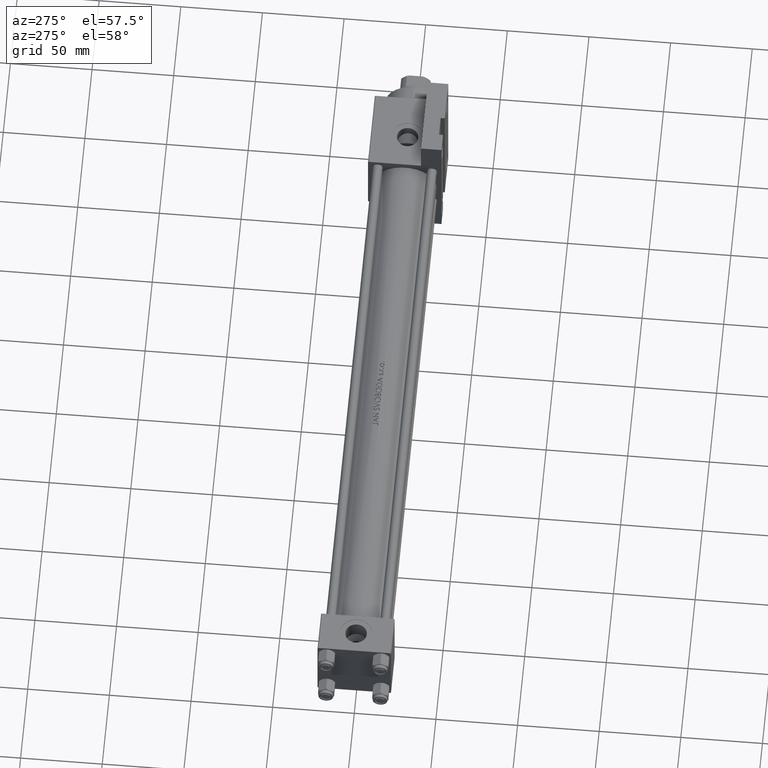
[diagram: clean part render]
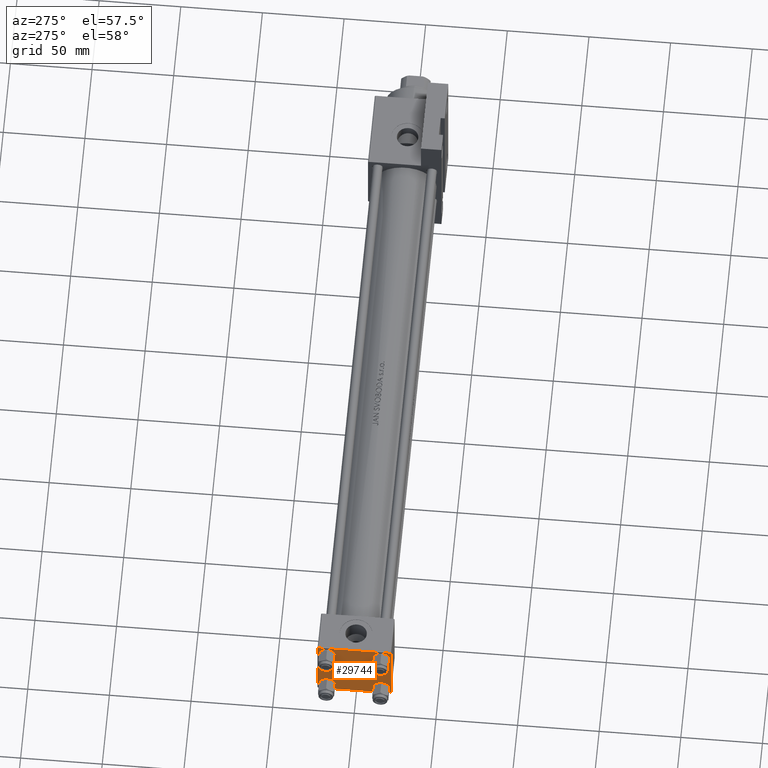
[diagram: same view with one face highlighted and labeled with its STEP entity id]
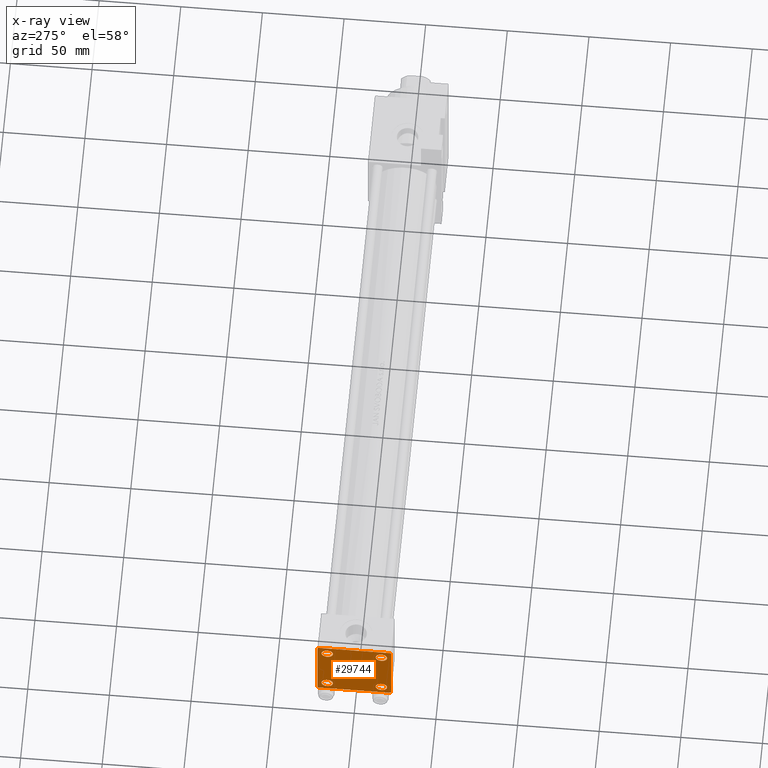
[diagram: x-ray of the same camera — body ghosted, the highlighted face saturated]
A machine part, auxiliary view. The second image highlights one B-rep face of the part: STEP entity #29744.
The next image is the same camera in x-ray: the body ghosted, the highlighted face saturated — about 0% of this face is hidden behind the body in this view.
In plain terms, the highlighted planar face has unit normal (-1, 0, -0).
Its self-contained STEP definition (entity closure, byte-faithful):
#402 = CARTESIAN_POINT ( 'NONE',  ( 0.000000000000000000, -16.59999999999999076, 13.10000000000001030 ) ) ;
#497 = VERTEX_POINT ( 'NONE', #21636 ) ;
#692 = EDGE_CURVE ( 'NONE', #11944, #497, #26934, .T. ) ;
#814 = EDGE_LOOP ( 'NONE', ( #40287, #13707 ) ) ;
#1103 = DIRECTION ( 'NONE',  ( 0.000000000000000000, -0.7071067811865426878, 0.7071067811865524577 ) ) ;
#1499 = DIRECTION ( 'NONE',  ( 1.000000000000000000, -0.000000000000000000, 0.000000000000000000 ) ) ;
#1882 = EDGE_CURVE ( 'NONE', #38798, #25050, #41513, .T. ) ;
#2148 = AXIS2_PLACEMENT_3D ( 'NONE', #22300, #4204, #33660 ) ;
#2780 = CARTESIAN_POINT ( 'NONE',  ( 0.000000000000000000, 16.59999999999999787, -13.10000000000000675 ) ) ;
#3058 = ORIENTED_EDGE ( 'NONE', *, *, #39753, .T. ) ;
#3153 = DIRECTION ( 'NONE',  ( 0.000000000000000000, 0.000000000000000000, 1.000000000000000000 ) ) ;
#3164 = VERTEX_POINT ( 'NONE', #2780 ) ;
#3527 = EDGE_CURVE ( 'NONE', #497, #37989, #11387, .T. ) ;
#3839 = CARTESIAN_POINT ( 'NONE',  ( 0.000000000000000000, -22.50000000000000000, -21.99999999999997158 ) ) ;
#4162 = VERTEX_POINT ( 'NONE', #4269 ) ;
#4204 = DIRECTION ( 'NONE',  ( 1.000000000000000000, -0.000000000000000000, 0.000000000000000000 ) ) ;
#4269 = CARTESIAN_POINT ( 'NONE',  ( 0.000000000000000000, -16.59999999999999076, 20.10000000000000853 ) ) ;
#4822 = DIRECTION ( 'NONE',  ( -0.000000000000000000, 0.7071067811865525687, 0.7071067811865425767 ) ) ;
#5229 = LINE ( 'NONE', #35892, #35617 ) ;
#5661 = VERTEX_POINT ( 'NONE', #8958 ) ;
#5669 = DIRECTION ( 'NONE',  ( 0.000000000000000000, 0.7071067811865474617, -0.7071067811865474617 ) ) ;
#5737 = ORIENTED_EDGE ( 'NONE', *, *, #29570, .F. ) ;
#5933 = CARTESIAN_POINT ( 'NONE',  ( 0.000000000000000000, 16.59999999999999787, 20.10000000000000142 ) ) ;
#6078 = CARTESIAN_POINT ( 'NONE',  ( 0.000000000000000000, 16.59999999999999787, 16.60000000000000497 ) ) ;
#6404 = CARTESIAN_POINT ( 'NONE',  ( 0.000000000000000000, -21.99999999999997868, 22.50000000000000000 ) ) ;
#7028 = CIRCLE ( 'NONE', #39402, 3.499999999999996003 ) ;
#7211 = DIRECTION ( 'NONE',  ( 1.000000000000000000, -0.000000000000000000, 0.000000000000000000 ) ) ;
#7654 = ORIENTED_EDGE ( 'NONE', *, *, #23024, .T. ) ;
#8958 = CARTESIAN_POINT ( 'NONE',  ( 0.000000000000000000, -16.59999999999999076, -20.10000000000000497 ) ) ;
#11179 = CARTESIAN_POINT ( 'NONE',  ( 0.000000000000000000, 21.99999999999999289, 22.50000000000000355 ) ) ;
#11237 = FACE_BOUND ( 'NONE', #814, .T. ) ;
#11372 = CARTESIAN_POINT ( 'NONE',  ( 0.000000000000000000, -16.59999999999999076, -13.10000000000001030 ) ) ;
#11387 = LINE ( 'NONE', #21998, #40691 ) ;
#11561 = VECTOR ( 'NONE', #1103, 1000.000000000000000 ) ;
#11582 = EDGE_CURVE ( 'NONE', #11991, #20748, #5229, .T. ) ;
#11922 = EDGE_CURVE ( 'NONE', #11944, #25050, #21328, .T. ) ;
#11944 = VERTEX_POINT ( 'NONE', #11179 ) ;
#11991 = VERTEX_POINT ( 'NONE', #37247 ) ;
#13707 = ORIENTED_EDGE ( 'NONE', *, *, #24117, .T. ) ;
#14016 = DIRECTION ( 'NONE',  ( 1.000000000000000000, -0.000000000000000000, 0.000000000000000000 ) ) ;
#14922 = CIRCLE ( 'NONE', #21106, 3.499999999999996003 ) ;
#15329 = FACE_OUTER_BOUND ( 'NONE', #40784, .T. ) ;
#15483 = CARTESIAN_POINT ( 'NONE',  ( 0.000000000000000000, 22.50000000000000000, -21.99999999999996803 ) ) ;
#16009 = EDGE_LOOP ( 'NONE', ( #18268, #32059 ) ) ;
#16037 = CARTESIAN_POINT ( 'NONE',  ( 0.000000000000000000, 16.59999999999999787, 13.10000000000000675 ) ) ;
#16215 = CARTESIAN_POINT ( 'NONE',  ( 0.000000000000000000, 22.25000000000014566, -22.24999999999984013 ) ) ;
#16784 = VERTEX_POINT ( 'NONE', #5933 ) ;
#17094 = ORIENTED_EDGE ( 'NONE', *, *, #21823, .T. ) ;
#17482 = VERTEX_POINT ( 'NONE', #23923 ) ;
#17759 = DIRECTION ( 'NONE',  ( 1.000000000000000000, -0.000000000000000000, 0.000000000000000000 ) ) ;
#17822 = ORIENTED_EDGE ( 'NONE', *, *, #11582, .T. ) ;
#17948 = CARTESIAN_POINT ( 'NONE',  ( 0.000000000000000000, 16.59999999999999787, -16.60000000000000497 ) ) ;
#18268 = ORIENTED_EDGE ( 'NONE', *, *, #29240, .T. ) ;
#18441 = AXIS2_PLACEMENT_3D ( 'NONE', #40462, #20948, #39525 ) ;
#18468 = FACE_BOUND ( 'NONE', #25328, .T. ) ;
#18703 = DIRECTION ( 'NONE',  ( -0.000000000000000000, -0.7071067811865426878, -0.7071067811865524577 ) ) ;
#19312 = VERTEX_POINT ( 'NONE', #402 ) ;
#19950 = LINE ( 'NONE', #23814, #44032 ) ;
#20064 = LINE ( 'NONE', #16215, #34994 ) ;
#20688 = EDGE_CURVE ( 'NONE', #4162, #19312, #33770, .T. ) ;
#20721 = CIRCLE ( 'NONE', #26147, 3.499999999999996003 ) ;
#20748 = VERTEX_POINT ( 'NONE', #46400 ) ;
#20948 = DIRECTION ( 'NONE',  ( 1.000000000000000000, -0.000000000000000000, 0.000000000000000000 ) ) ;
#21106 = AXIS2_PLACEMENT_3D ( 'NONE', #36123, #17759, #32504 ) ;
#21170 = CIRCLE ( 'NONE', #31201, 3.499999999999996003 ) ;
#21236 = AXIS2_PLACEMENT_3D ( 'NONE', #43691, #14016, #3153 ) ;
#21328 = LINE ( 'NONE', #40372, #40212 ) ;
#21525 = CARTESIAN_POINT ( 'NONE',  ( 0.000000000000000000, -16.59999999999999076, -16.60000000000000853 ) ) ;
#21636 = CARTESIAN_POINT ( 'NONE',  ( 0.000000000000000000, 22.50000000000000000, 21.99999999999999645 ) ) ;
#21823 = EDGE_CURVE ( 'NONE', #20748, #32761, #37087, .T. ) ;
#21998 = CARTESIAN_POINT ( 'NONE',  ( 0.000000000000000000, 22.50000000000000000, 22.50000000000000355 ) ) ;
#22271 = CIRCLE ( 'NONE', #36176, 3.499999999999996003 ) ;
#22300 = CARTESIAN_POINT ( 'NONE',  ( 0.000000000000000000, -16.59999999999999076, 16.60000000000000853 ) ) ;
#22331 = DIRECTION ( 'NONE',  ( -1.000000000000000000, 0.000000000000000000, -0.000000000000000000 ) ) ;
#22877 = ORIENTED_EDGE ( 'NONE', *, *, #1882, .T. ) ;
#23024 = EDGE_CURVE ( 'NONE', #5661, #42349, #22271, .T. ) ;
#23059 = EDGE_LOOP ( 'NONE', ( #44625, #25441 ) ) ;
#23174 = CARTESIAN_POINT ( 'NONE',  ( -0.000000000000000000, -22.24999999999984013, 22.25000000000015277 ) ) ;
#23361 = EDGE_CURVE ( 'NONE', #3164, #17482, #20721, .T. ) ;
#23814 = CARTESIAN_POINT ( 'NONE',  ( 0.000000000000000000, -22.50000000000000000, 22.50000000000000000 ) ) ;
#23923 = CARTESIAN_POINT ( 'NONE',  ( 0.000000000000000000, 16.59999999999999787, -20.10000000000000142 ) ) ;
#24117 = EDGE_CURVE ( 'NONE', #19312, #4162, #45415, .T. ) ;
#25050 = VERTEX_POINT ( 'NONE', #6404 ) ;
#25328 = EDGE_LOOP ( 'NONE', ( #46577, #7654 ) ) ;
#25441 = ORIENTED_EDGE ( 'NONE', *, *, #42033, .T. ) ;
#25912 = DIRECTION ( 'NONE',  ( 1.000000000000000000, -0.000000000000000000, 0.000000000000000000 ) ) ;
#25961 = PLANE ( 'NONE',  #30968 ) ;
#26055 = DIRECTION ( 'NONE',  ( 0.000000000000000000, 0.000000000000000000, 1.000000000000000000 ) ) ;
#26147 = AXIS2_PLACEMENT_3D ( 'NONE', #41242, #7211, #26055 ) ;
#26209 = DIRECTION ( 'NONE',  ( -0.000000000000000000, 0.000000000000000000, 1.000000000000000000 ) ) ;
#26934 = LINE ( 'NONE', #30554, #37647 ) ;
#29017 = DIRECTION ( 'NONE',  ( 0.000000000000000000, 0.000000000000000000, 1.000000000000000000 ) ) ;
#29240 = EDGE_CURVE ( 'NONE', #16784, #37182, #7028, .T. ) ;
#29570 = EDGE_CURVE ( 'NONE', #38798, #32761, #19950, .T. ) ;
#29594 = FACE_BOUND ( 'NONE', #16009, .T. ) ;
#29744 = ADVANCED_FACE ( 'NONE', ( #11237, #18468, #32977, #29594, #15329 ), #25961, .T. ) ;
#30554 = CARTESIAN_POINT ( 'NONE',  ( 0.000000000000000000, 22.24999999999999645, 22.24999999999999645 ) ) ;
#30968 = AXIS2_PLACEMENT_3D ( 'NONE', #40667, #22331, #26209 ) ;
#31201 = AXIS2_PLACEMENT_3D ( 'NONE', #17948, #25912, #43314 ) ;
#32059 = ORIENTED_EDGE ( 'NONE', *, *, #43576, .T. ) ;
#32504 = DIRECTION ( 'NONE',  ( 0.000000000000000000, 0.000000000000000000, 1.000000000000000000 ) ) ;
#32649 = DIRECTION ( 'NONE',  ( 1.000000000000000000, -0.000000000000000000, 0.000000000000000000 ) ) ;
#32761 = VERTEX_POINT ( 'NONE', #3839 ) ;
#32977 = FACE_BOUND ( 'NONE', #23059, .T. ) ;
#33399 = DIRECTION ( 'NONE',  ( 0.000000000000000000, -1.000000000000000000, -7.709882115452476934E-17 ) ) ;
#33660 = DIRECTION ( 'NONE',  ( 0.000000000000000000, 0.000000000000000000, 1.000000000000000000 ) ) ;
#33770 = CIRCLE ( 'NONE', #2148, 3.499999999999996003 ) ;
#34515 = VECTOR ( 'NONE', #4822, 999.9999999999998863 ) ;
#34522 = ORIENTED_EDGE ( 'NONE', *, *, #692, .T. ) ;
#34766 = ORIENTED_EDGE ( 'NONE', *, *, #3527, .T. ) ;
#34994 = VECTOR ( 'NONE', #18703, 1000.000000000000000 ) ;
#35617 = VECTOR ( 'NONE', #36124, 1000.000000000000000 ) ;
#35892 = CARTESIAN_POINT ( 'NONE',  ( 0.000000000000000000, 22.50000000000000000, -22.49999999999999645 ) ) ;
#36124 = DIRECTION ( 'NONE',  ( 0.000000000000000000, -1.000000000000000000, -2.312964634635742957E-16 ) ) ;
#36123 = CARTESIAN_POINT ( 'NONE',  ( 0.000000000000000000, -16.59999999999999076, -16.60000000000000853 ) ) ;
#36176 = AXIS2_PLACEMENT_3D ( 'NONE', #21525, #32649, #29017 ) ;
#37087 = LINE ( 'NONE', #41647, #11561 ) ;
#37182 = VERTEX_POINT ( 'NONE', #16037 ) ;
#37215 = DIRECTION ( 'NONE',  ( 0.000000000000000000, 0.000000000000000000, -1.000000000000000000 ) ) ;
#37247 = CARTESIAN_POINT ( 'NONE',  ( 0.000000000000000000, 21.99999999999999289, -22.49999999999999645 ) ) ;
#37647 = VECTOR ( 'NONE', #5669, 1000.000000000000114 ) ;
#37989 = VERTEX_POINT ( 'NONE', #15483 ) ;
#38671 = DIRECTION ( 'NONE',  ( 0.000000000000000000, 0.000000000000000000, 1.000000000000000000 ) ) ;
#38798 = VERTEX_POINT ( 'NONE', #44637 ) ;
#39402 = AXIS2_PLACEMENT_3D ( 'NONE', #6078, #1499, #38671 ) ;
#39525 = DIRECTION ( 'NONE',  ( 0.000000000000000000, 0.000000000000000000, 1.000000000000000000 ) ) ;
#39588 = EDGE_CURVE ( 'NONE', #42349, #5661, #14922, .T. ) ;
#39753 = EDGE_CURVE ( 'NONE', #37989, #11991, #20064, .T. ) ;
#40212 = VECTOR ( 'NONE', #33399, 1000.000000000000000 ) ;
#40287 = ORIENTED_EDGE ( 'NONE', *, *, #20688, .T. ) ;
#40372 = CARTESIAN_POINT ( 'NONE',  ( 0.000000000000000000, 22.50000000000000000, 22.50000000000000355 ) ) ;
#40462 = CARTESIAN_POINT ( 'NONE',  ( 0.000000000000000000, -16.59999999999999076, 16.60000000000000853 ) ) ;
#40667 = CARTESIAN_POINT ( 'NONE',  ( 0.000000000000000000, 0.000000000000000000, 0.000000000000000000 ) ) ;
#40691 = VECTOR ( 'NONE', #37215, 1000.000000000000000 ) ;
#40784 = EDGE_LOOP ( 'NONE', ( #34766, #3058, #17822, #17094, #5737, #22877, #43901, #34522 ) ) ;
#41242 = CARTESIAN_POINT ( 'NONE',  ( 0.000000000000000000, 16.59999999999999787, -16.60000000000000497 ) ) ;
#41513 = LINE ( 'NONE', #23174, #34515 ) ;
#41647 = CARTESIAN_POINT ( 'NONE',  ( 0.000000000000000000, -22.25000000000014566, -22.24999999999984013 ) ) ;
#42033 = EDGE_CURVE ( 'NONE', #17482, #3164, #21170, .T. ) ;
#42349 = VERTEX_POINT ( 'NONE', #11372 ) ;
#43314 = DIRECTION ( 'NONE',  ( 0.000000000000000000, 0.000000000000000000, 1.000000000000000000 ) ) ;
#43576 = EDGE_CURVE ( 'NONE', #37182, #16784, #46691, .T. ) ;
#43691 = CARTESIAN_POINT ( 'NONE',  ( 0.000000000000000000, 16.59999999999999787, 16.60000000000000497 ) ) ;
#43901 = ORIENTED_EDGE ( 'NONE', *, *, #11922, .F. ) ;
#44032 = VECTOR ( 'NONE', #46004, 1000.000000000000000 ) ;
#44625 = ORIENTED_EDGE ( 'NONE', *, *, #23361, .T. ) ;
#44637 = CARTESIAN_POINT ( 'NONE',  ( 0.000000000000000000, -22.50000000000000000, 22.00000000000000000 ) ) ;
#45415 = CIRCLE ( 'NONE', #18441, 3.499999999999996003 ) ;
#46004 = DIRECTION ( 'NONE',  ( 0.000000000000000000, 0.000000000000000000, -1.000000000000000000 ) ) ;
#46400 = CARTESIAN_POINT ( 'NONE',  ( 0.000000000000000000, -21.99999999999997158, -22.50000000000000711 ) ) ;
#46577 = ORIENTED_EDGE ( 'NONE', *, *, #39588, .T. ) ;
#46691 = CIRCLE ( 'NONE', #21236, 3.499999999999996003 ) ;